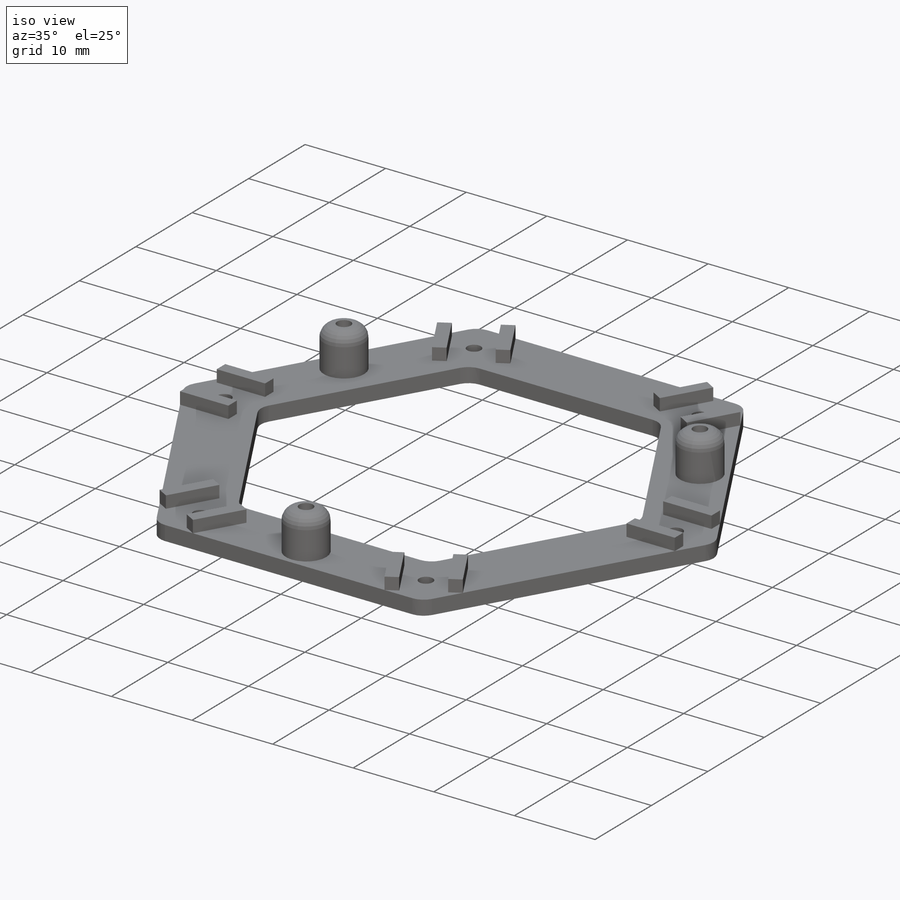
[diagram: iso view]
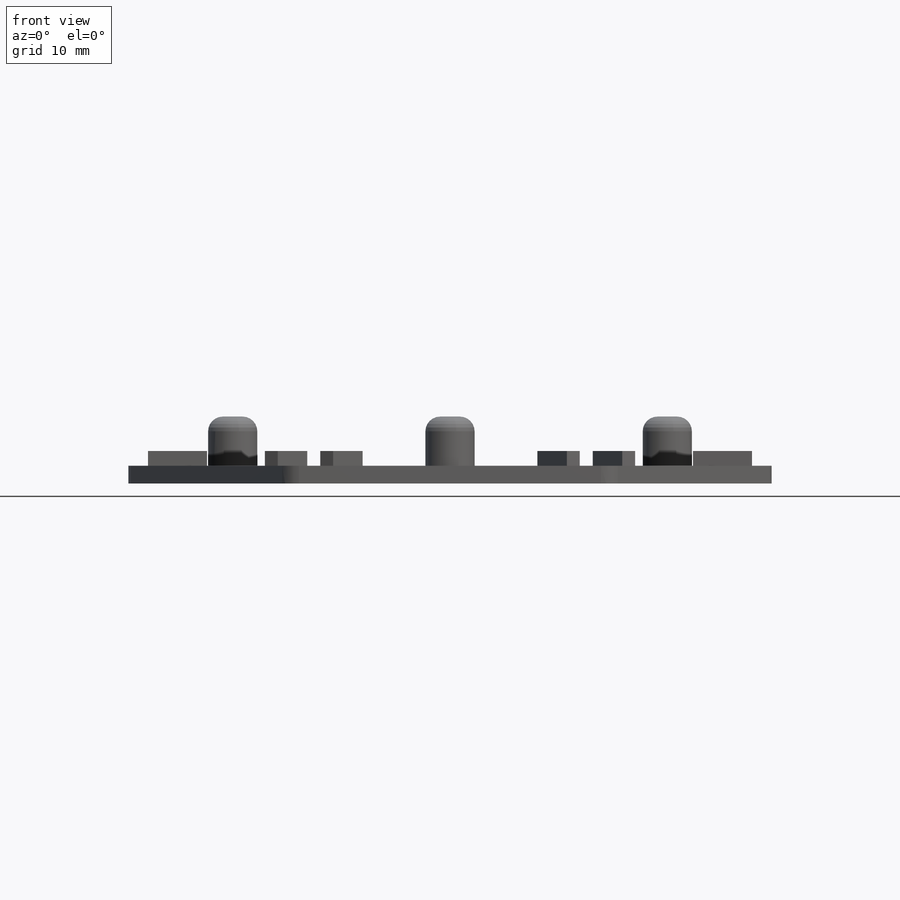
[diagram: front view]
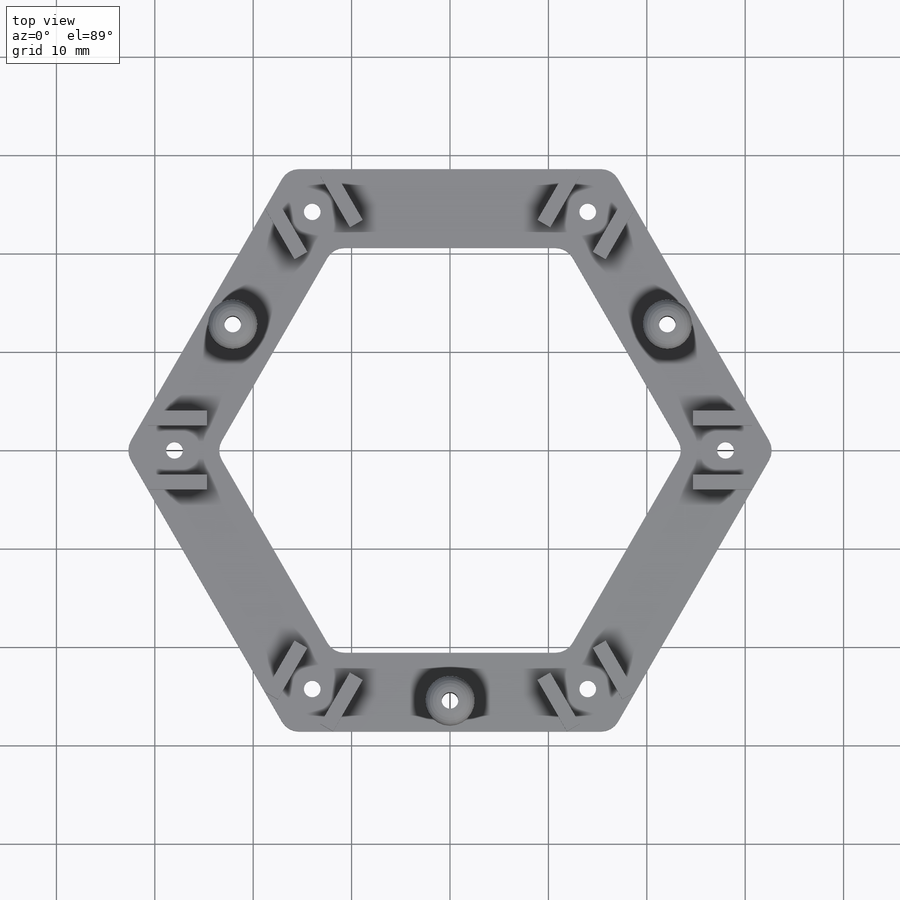
[diagram: top view]
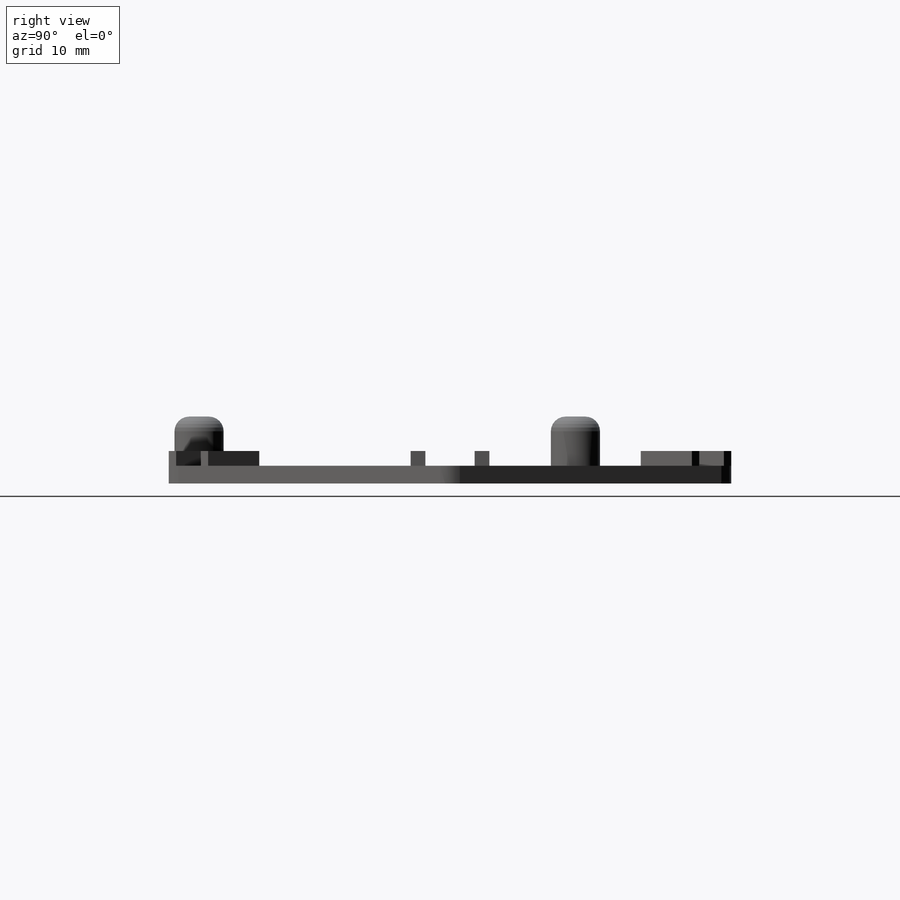
[diagram: right view]
SOLIDWORKS PART (.sldprt)
format: sldprt  version: not decoded by parser v0  size: 413,696 bytes
history: native  units: mm
features: sketch x4, plane x3, extrude x3, fillet x2, material x1, cut_extrude x1 (+10 scaffold rows collapsed)
feature tree (24):
  scaffold x10  (default folders/planes/origin — collapsed)
  material  "材质 <未指定>"
  plane  "前视基准面"
  plane  "上视基准面"
  plane  "右视基准面"
  sketch  "Sketch1"  dims[c1.D4=1.7mm c1.D1=33.0mm c1.D2=~27.016897mm c2.D2=30.0deg c2.D3=28.0mm c2.D5=8.0mm c2.D6=32.0mm c2.D7=23.0mm c2.D8=6.0]
  extrude  "Extrude1"  Depth=1.8mm
  fillet  "Fillet1"  Radius=2mm
  sketch  "Sketch3"  dims[D1=5.0mm D2=25.5mm D3=3.0]
  extrude  "Extrude3"  Depth=5mm
  sketch  "Sketch4"  dims[D1=1.7mm]
  cut_extrude  "Extrude4"  Depth=10mm
  fillet  "Fillet2"  Radius=1.5mm
  sketch  "草图1"  dims[D1=1.5mm D2=6.0mm D3=5.0mm D4=6.0]
  extrude  "凸台-拉伸1"  Depth=1.5mm
decode coverage: 10 of 10 modeling features carry decoded parameters
note: ~ marks probable driven/reference dimensions
note: suppression state not decoded; provenance and decode notes live in map.json
